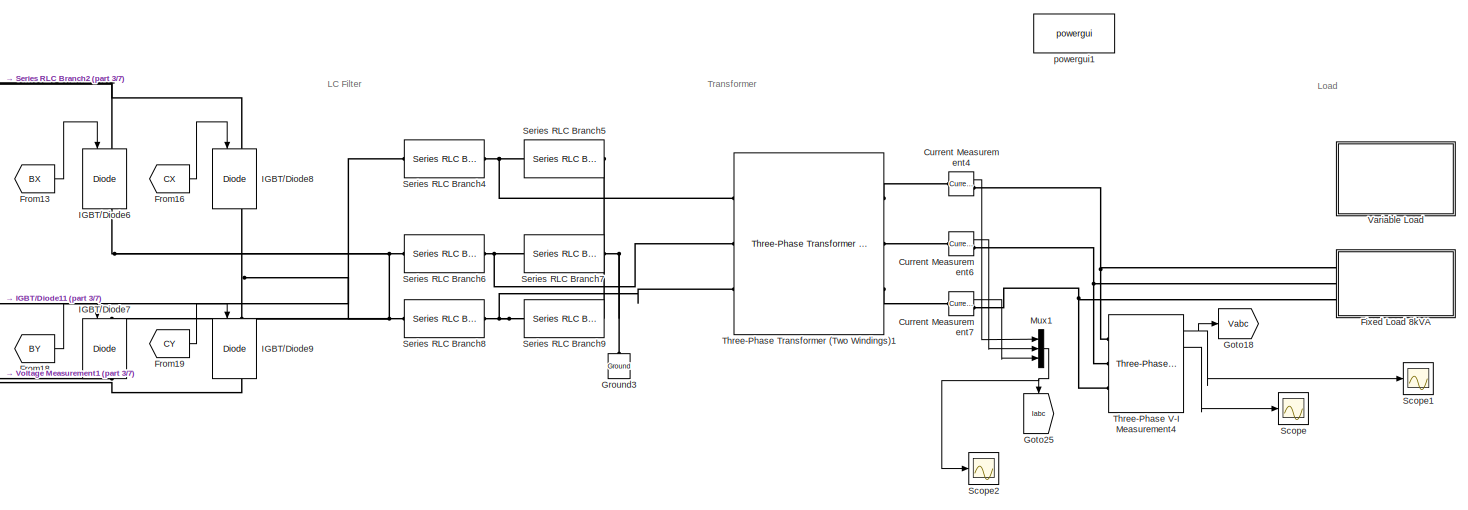
[diagram: root canvas - part 1/7, top right region]
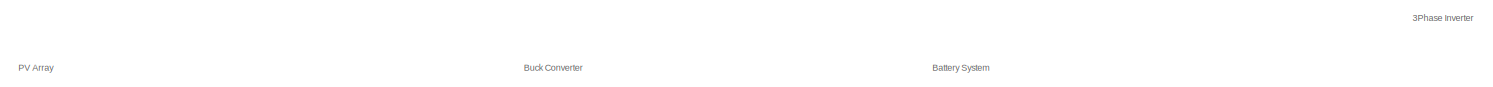
[diagram: root canvas - part 2/7, top left region]
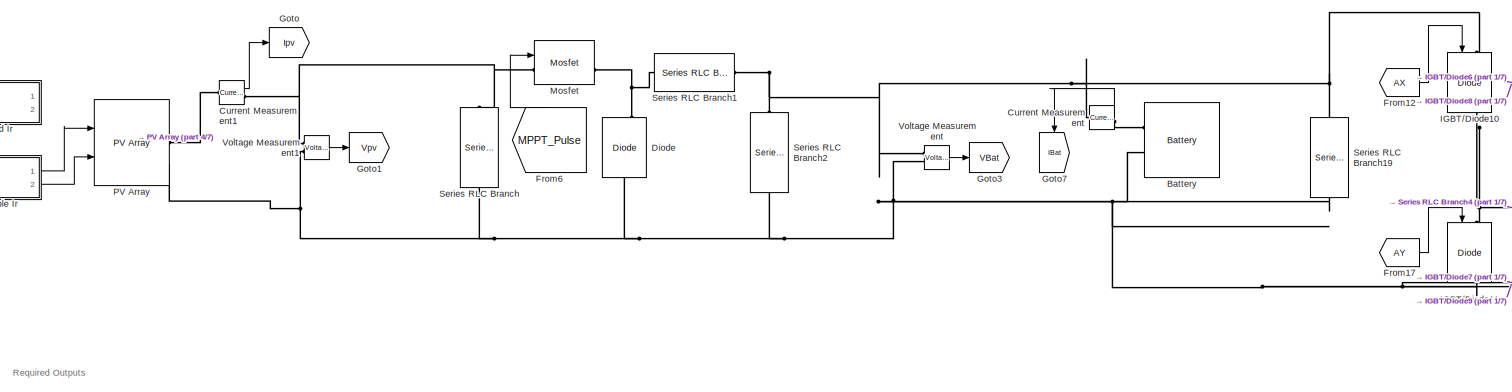
[diagram: root canvas - part 3/7, top left region]
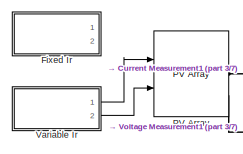
[diagram: root canvas - part 4/7, top left region]
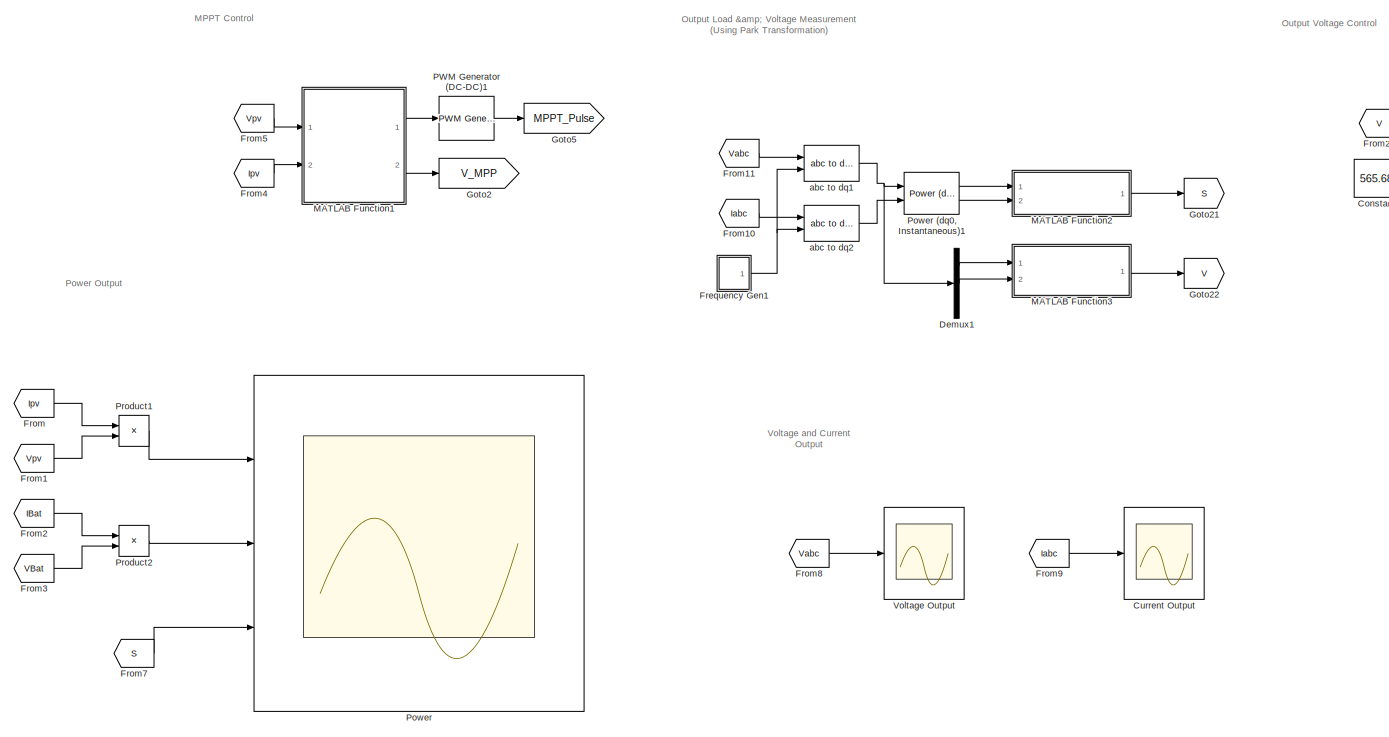
[diagram: root canvas - part 5/7, central region]
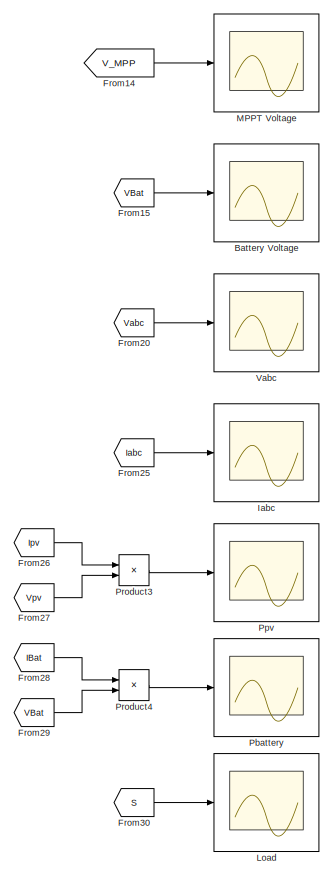
[diagram: root canvas - part 6/7, bottom left region]
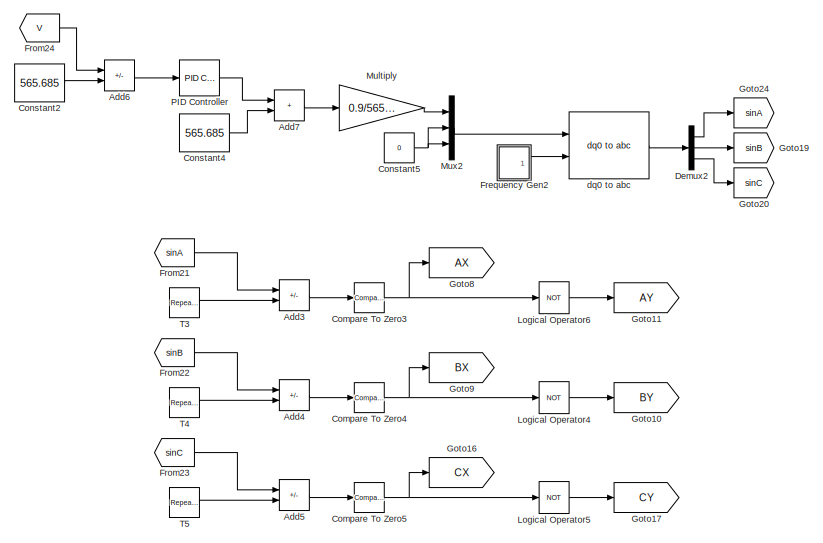
[diagram: root canvas - part 7/7, middle right region]
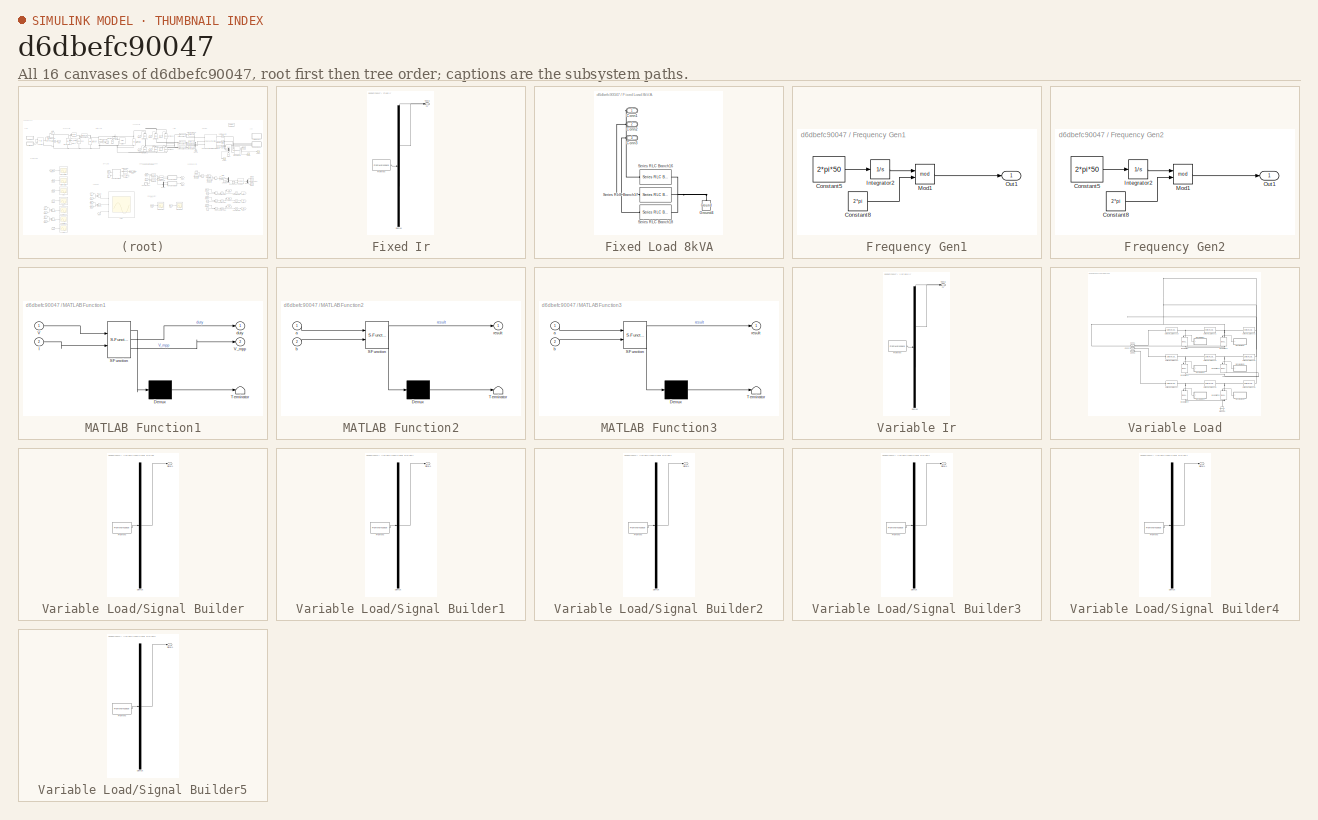
[diagram: thumbnail index - all 16 canvases of the model, root first then tree order]
MODEL slx_d6dbefc90047
KIND model
CONFIG AbsTol = auto
CONFIG EnableMultiTasking = off
CONFIG FixedStep = auto
CONFIG MaxStep = auto
CONFIG MinStep = auto
CONFIG RelTol = 1e-3
CONFIG SampleTimeConstraint = Unconstrained
CONFIG Solver = ode23t
CONFIG SolverName = ode23t
CONFIG StartTime = 0.0
CONFIG StopTime = 10
BLOCK [Sum] Add3
  IconShape = rectangular
  Inputs = +-
  Ports = [2, 1]
BLOCK [Sum] Add4
  IconShape = rectangular
  Inputs = +-
  Ports = [2, 1]
BLOCK [Sum] Add5
  IconShape = rectangular
  Inputs = +-
  Ports = [2, 1]
BLOCK [Sum] Add6
  IconShape = rectangular
  Inputs = +-
  Ports = [2, 1]
BLOCK [Sum] Add7
  IconShape = rectangular
  Ports = [2, 1]
BLOCK [Reference] Battery  REF=electricdrivelib/Extra Sources/Battery
  NameLocation = top
  Ports = [0, 1, 0, 0, 0, 2]
  SourceBlock = electricdrivelib/Extra Sources/Battery
  SourceType = Battery
BLOCK [Scope] Battery Voltage
  Floating = off
  NumInputPorts = 1
  Ports = [1]
  ScopeSpecificationString = Simulink.scopes.TimeScopeBlockCfg('CurrentConfiguration', extmgr.ConfigurationSet(extmgr.Configuration('Core','General UI',true,'FigureColor',[1 1 1]),extmgr.Configuration('Core','Source UI',true),extmgr.Configuration('Sources','WiredSimulink',true,'DataLoggingVariableName','ScopeData2'),extmgr.Configuration('Visuals','Time Domain',true,'SerializedDisplays',{struct('MinYLimReal','-6.21993','MaxYLi...<+1571ch>
BLOCK [Reference] Compare To Zero3  REF=simulink/Logic and Bit
Operations/Compare
To Zero
  Ports = [1, 1]
  SourceBlock = simulink/Logic and Bit\nOperations/Compare\nTo Zero
  SourceType = Compare To Zero
BLOCK [Reference] Compare To Zero4  REF=simulink/Logic and Bit
Operations/Compare
To Zero
  Ports = [1, 1]
  SourceBlock = simulink/Logic and Bit\nOperations/Compare\nTo Zero
  SourceType = Compare To Zero
BLOCK [Reference] Compare To Zero5  REF=simulink/Logic and Bit
Operations/Compare
To Zero
  Ports = [1, 1]
  SourceBlock = simulink/Logic and Bit\nOperations/Compare\nTo Zero
  SourceType = Compare To Zero
BLOCK [Constant] Constant2
  Value = 565.685
BLOCK [Constant] Constant4
  Value = 565.685
BLOCK [Constant] Constant5
  Value = 0
BLOCK [Reference] Current Measurement  REF=powerlib/Measurements/Current Measurement
  Ports = [0, 1, 0, 0, 0, 1, 1]
  SourceBlock = powerlib/Measurements/Current Measurement
  SourceType = Current Measurement
  UserDataPersistent = on
BLOCK [Reference] Current Measurement1  REF=powerlib/Measurements/Current Measurement
  Ports = [0, 1, 0, 0, 0, 1, 1]
  SourceBlock = powerlib/Measurements/Current Measurement
  SourceType = Current Measurement
  UserDataPersistent = on
BLOCK [Reference] Current Measurement4  REF=powerlib/Measurements/Current Measurement
  Ports = [0, 1, 0, 0, 0, 1, 1]
  SourceBlock = powerlib/Measurements/Current Measurement
  SourceType = Current Measurement
  UserDataPersistent = on
BLOCK [Reference] Current Measurement6  REF=powerlib/Measurements/Current Measurement
  Ports = [0, 1, 0, 0, 0, 1, 1]
  SourceBlock = powerlib/Measurements/Current Measurement
  SourceType = Current Measurement
  UserDataPersistent = on
BLOCK [Reference] Current Measurement7  REF=powerlib/Measurements/Current Measurement
  Ports = [0, 1, 0, 0, 0, 1, 1]
  SourceBlock = powerlib/Measurements/Current Measurement
  SourceType = Current Measurement
  UserDataPersistent = on
BLOCK [Scope] Current Output
  Floating = off
  NumInputPorts = 1
  Ports = [1]
  ScopeSpecificationString = Simulink.scopes.TimeScopeBlockCfg('CurrentConfiguration', extmgr.ConfigurationSet(extmgr.Configuration('Core','General UI',true),extmgr.Configuration('Core','Source UI',true),extmgr.Configuration('Sources','WiredSimulink',true,'DataLoggingVariableName','ScopeData2'),extmgr.Configuration('Visuals','Time Domain',true,'SerializedDisplays',{struct('MinYLimReal','-17.83427','MaxYLimReal','16.7279','YLa...<+1538ch>
BLOCK [Demux] Demux1
  Outputs = 3
  Ports = [1, 3]
BLOCK [Demux] Demux2
  Outputs = 3
  Ports = [1, 3]
BLOCK [Reference] Diode  REF=powerlib/Power Electronics/Diode
  NameLocation = right
  Ports = [0, 1, 0, 0, 0, 1, 1]
  SourceBlock = powerlib/Power Electronics/Diode
  SourceType = Diode
BLOCK [SubSystem] Fixed Ir
  ClipboardFcn = sigbuilder_block('clipboard');
  CloseFcn = sigbuilder_block('close');
  ContinueFcn = sigbuilder_block('continue');
  CopyFcn = sigbuilder_block('copy');
  DeleteFcn = sigbuilder_block('delete');
  LoadFcn = sigbuilder_block('load');
  MaskHideContents = on
  ModelCloseFcn = sigbuilder_block('modelClose');
  NameChangeFcn = sigbuilder_block('namechange');
  OpenFcn = sigbuilder_block('open',[437.6 182.4 550.4 400.2 ]);
  PauseFcn = sigbuilder_block('pause');
  Ports = [0, 2]
  PreSaveFcn = sigbuilder_block('preSave');
  StartFcn = sigbuilder_block('start');
  StopFcn = sigbuilder_block('stop');
  Tag = STV Subsys
BLOCK [Demux] Fixed Ir/Demux
  DisplayOption = none
  Outputs = 2
  Ports = [1, 2]
  Tag = STV Demux
BLOCK [FromWorkspace] Fixed Ir/FromWs
  Tag = STV FromWs
  VariableName = tuvar
BLOCK [Outport] Fixed Ir/Ir
  Tag = STV Outport
BLOCK [Outport] Fixed Ir/Temp
  Port = 2
  Tag = STV Outport
BLOCK [SubSystem] Fixed Load 8kVA
  Ports = [0, 0, 0, 0, 0, 3]
BLOCK [PMIOPort] Fixed Load 8kVA/Conn1
  Side = Left
BLOCK [PMIOPort] Fixed Load 8kVA/Conn2
  Port = 2
  Side = Left
BLOCK [PMIOPort] Fixed Load 8kVA/Conn3
  Port = 3
  Side = Left
BLOCK [Reference] Fixed Load 8kVA/Ground4  REF=powerlib/Elements/Ground
  NameLocation = right
  Ports = [0, 0, 0, 0, 0, 1]
  SourceBlock = powerlib/Elements/Ground
  SourceType = Ground
BLOCK [Reference] Fixed Load 8kVA/Series RLC Branch16  REF=powerlib/Elements/Series RLC Branch
  Ports = [0, 0, 0, 0, 0, 1, 1]
  SourceBlock = powerlib/Elements/Series RLC Branch
  SourceType = Series RLC Branch
BLOCK [Reference] Fixed Load 8kVA/Series RLC Branch17  REF=powerlib/Elements/Series RLC Branch
  Ports = [0, 0, 0, 0, 0, 1, 1]
  SourceBlock = powerlib/Elements/Series RLC Branch
  SourceType = Series RLC Branch
BLOCK [Reference] Fixed Load 8kVA/Series RLC Branch18  REF=powerlib/Elements/Series RLC Branch
  Ports = [0, 0, 0, 0, 0, 1, 1]
  SourceBlock = powerlib/Elements/Series RLC Branch
  SourceType = Series RLC Branch
BLOCK [SubSystem] Frequency Gen1
  Ports = [0, 1]
BLOCK [Constant] Frequency Gen1/Constant5
  Value = 2*pi*50
BLOCK [Constant] Frequency Gen1/Constant8
  Value = 2*pi
BLOCK [Integrator] Frequency Gen1/Integrator2
  Ports = [1, 1]
BLOCK [Math] Frequency Gen1/Mod1
  Operator = mod
  Ports = [2, 1]
BLOCK [Outport] Frequency Gen1/Out1
BLOCK [SubSystem] Frequency Gen2
  Ports = [0, 1]
BLOCK [Constant] Frequency Gen2/Constant5
  Value = 2*pi*50
BLOCK [Constant] Frequency Gen2/Constant8
  Value = 2*pi
BLOCK [Integrator] Frequency Gen2/Integrator2
  Ports = [1, 1]
BLOCK [Math] Frequency Gen2/Mod1
  Operator = mod
  Ports = [2, 1]
BLOCK [Outport] Frequency Gen2/Out1
BLOCK [From] From
  GotoTag = Ipv
BLOCK [From] From1
  GotoTag = Vpv
BLOCK [From] From10
  GotoTag = Iabc
BLOCK [From] From11
  GotoTag = Vabc
BLOCK [From] From12
  GotoTag = AX
BLOCK [From] From13
  GotoTag = BX
BLOCK [From] From14
  GotoTag = V_MPP
BLOCK [From] From15
  GotoTag = VBat
BLOCK [From] From16
  GotoTag = CX
BLOCK [From] From17
  GotoTag = AY
BLOCK [From] From18
  GotoTag = BY
BLOCK [From] From19
  GotoTag = CY
BLOCK [From] From2
  GotoTag = IBat
BLOCK [From] From20
  GotoTag = Vabc
BLOCK [From] From21
  GotoTag = sinA
BLOCK [From] From22
  GotoTag = sinB
BLOCK [From] From23
  GotoTag = sinC
BLOCK [From] From24
  GotoTag = V
BLOCK [From] From25
  GotoTag = Iabc
BLOCK [From] From26
  GotoTag = Ipv
BLOCK [From] From27
  GotoTag = Vpv
BLOCK [From] From28
  GotoTag = IBat
BLOCK [From] From29
  GotoTag = VBat
BLOCK [From] From3
  GotoTag = VBat
BLOCK [From] From30
  GotoTag = S
BLOCK [From] From4
  GotoTag = Ipv
BLOCK [From] From5
  GotoTag = Vpv
BLOCK [From] From6
  GotoTag = MPPT_Pulse
  NameLocation = left
BLOCK [From] From7
  GotoTag = S
BLOCK [From] From8
  GotoTag = Vabc
BLOCK [From] From9
  GotoTag = Iabc
BLOCK [Goto] Goto
  GotoTag = Ipv
BLOCK [Goto] Goto1
  GotoTag = Vpv
BLOCK [Goto] Goto10
  GotoTag = BY
BLOCK [Goto] Goto11
  GotoTag = AY
BLOCK [Goto] Goto16
  GotoTag = CX
BLOCK [Goto] Goto17
  GotoTag = CY
BLOCK [Goto] Goto18
  GotoTag = Vabc
BLOCK [Goto] Goto19
  GotoTag = sinB
BLOCK [Goto] Goto2
  GotoTag = V_MPP
BLOCK [Goto] Goto20
  GotoTag = sinC
BLOCK [Goto] Goto21
  GotoTag = S
BLOCK [Goto] Goto22
  GotoTag = V
BLOCK [Goto] Goto24
  GotoTag = sinA
BLOCK [Goto] Goto25
  GotoTag = Iabc
  NameLocation = left
BLOCK [Goto] Goto3
  GotoTag = VBat
BLOCK [Goto] Goto5
  GotoTag = MPPT_Pulse
BLOCK [Goto] Goto7
  GotoTag = IBat
  NameLocation = left
BLOCK [Goto] Goto8
  GotoTag = AX
BLOCK [Goto] Goto9
  GotoTag = BX
BLOCK [Reference] Ground3  REF=powerlib/Elements/Ground
  NameLocation = right
  Ports = [0, 0, 0, 0, 0, 1]
  SourceBlock = powerlib/Elements/Ground
  SourceType = Ground
BLOCK [Reference] IGBT//Diode10  REF=powerlib/Power Electronics/IGBT//Diode
  NameLocation = left
  Ports = [1, 1, 0, 0, 0, 1, 1]
  SourceBlock = powerlib/Power Electronics/IGBT//Diode
  SourceType = IGBT/Diode
BLOCK [Reference] IGBT//Diode11  REF=powerlib/Power Electronics/IGBT//Diode
  NameLocation = left
  Ports = [1, 1, 0, 0, 0, 1, 1]
  SourceBlock = powerlib/Power Electronics/IGBT//Diode
  SourceType = IGBT/Diode
BLOCK [Reference] IGBT//Diode6  REF=powerlib/Power Electronics/IGBT//Diode
  NameLocation = left
  Ports = [1, 1, 0, 0, 0, 1, 1]
  SourceBlock = powerlib/Power Electronics/IGBT//Diode
  SourceType = IGBT/Diode
BLOCK [Reference] IGBT//Diode7  REF=powerlib/Power Electronics/IGBT//Diode
  NameLocation = left
  Ports = [1, 1, 0, 0, 0, 1, 1]
  SourceBlock = powerlib/Power Electronics/IGBT//Diode
  SourceType = IGBT/Diode
BLOCK [Reference] IGBT//Diode8  REF=powerlib/Power Electronics/IGBT//Diode
  NameLocation = left
  Ports = [1, 1, 0, 0, 0, 1, 1]
  SourceBlock = powerlib/Power Electronics/IGBT//Diode
  SourceType = IGBT/Diode
BLOCK [Reference] IGBT//Diode9  REF=powerlib/Power Electronics/IGBT//Diode
  NameLocation = left
  Ports = [1, 1, 0, 0, 0, 1, 1]
  SourceBlock = powerlib/Power Electronics/IGBT//Diode
  SourceType = IGBT/Diode
BLOCK [Scope] Iabc
  Floating = off
  NumInputPorts = 1
  Ports = [1]
  ScopeSpecificationString = Simulink.scopes.TimeScopeBlockCfg('CurrentConfiguration', extmgr.ConfigurationSet(extmgr.Configuration('Core','General UI',true,'FigureColor',[1 1 1]),extmgr.Configuration('Core','Source UI',true),extmgr.Configuration('Sources','WiredSimulink',true,'DataLoggingVariableName','ScopeData4'),extmgr.Configuration('Visuals','Time Domain',true,'SerializedDisplays',{struct('MinYLimReal','-20.31677','MaxYL...<+1794ch>
BLOCK [Scope] Load
  Floating = off
  NumInputPorts = 1
  Ports = [1]
  ScopeSpecificationString = Simulink.scopes.TimeScopeBlockCfg('CurrentConfiguration', extmgr.ConfigurationSet(extmgr.Configuration('Core','General UI',true,'FigureColor',[1 1 1]),extmgr.Configuration('Core','Source UI',true),extmgr.Configuration('Sources','WiredSimulink',true,'DataLoggingVariableName','ScopeData7'),extmgr.Configuration('Visuals','Time Domain',true,'SerializedDisplays',{struct('MinYLimReal','-1057.73442','Max...<+1582ch>
BLOCK [Logic] Logical Operator4
  AllPortsSameDT = off
  Operator = NOT
  OutDataTypeStr = boolean
  Ports = [1, 1]
BLOCK [Logic] Logical Operator5
  AllPortsSameDT = off
  Operator = NOT
  OutDataTypeStr = boolean
  Ports = [1, 1]
BLOCK [Logic] Logical Operator6
  AllPortsSameDT = off
  Operator = NOT
  OutDataTypeStr = boolean
  Ports = [1, 1]
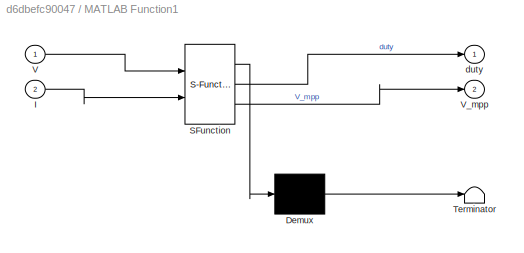
BLOCK [SubSystem] MATLAB Function1
  ErrorFcn = Stateflow.Translate.translate
  PermitHierarchicalResolution = ExplicitOnly
  Ports = [2, 2]
  SFBlockType = MATLAB Function
  TreatAsAtomicUnit = on
BLOCK [Demux] MATLAB Function1/ Demux 
  Outputs = 1
  Ports = [1, 1]
BLOCK [S-Function] MATLAB Function1/ SFunction 
  EnableBusSupport = on
  FunctionName = sf_sfun
  PortCounts = [2 3]
  Ports = [2, 3]
  SFcnIsStateOwnerBlock = off
  SFunctionDeploymentMode = off
  Tag = Stateflow S-Function 1
BLOCK [Terminator] MATLAB Function1/ Terminator 
BLOCK [Inport] MATLAB Function1/I
  Port = 2
BLOCK [Inport] MATLAB Function1/V
BLOCK [Outport] MATLAB Function1/V_mpp
  Port = 2
BLOCK [Outport] MATLAB Function1/duty
BLOCK [SubSystem] MATLAB Function2
  ErrorFcn = Stateflow.Translate.translate
  PermitHierarchicalResolution = ExplicitOnly
  Ports = [2, 1]
  SFBlockType = MATLAB Function
  TreatAsAtomicUnit = on
BLOCK [Demux] MATLAB Function2/ Demux 
  Outputs = 1
  Ports = [1, 1]
BLOCK [S-Function] MATLAB Function2/ SFunction 
  EnableBusSupport = on
  FunctionName = sf_sfun
  PortCounts = [2 2]
  Ports = [2, 2]
  SFcnIsStateOwnerBlock = off
  SFunctionDeploymentMode = off
  Tag = Stateflow S-Function 3
BLOCK [Terminator] MATLAB Function2/ Terminator 
BLOCK [Inport] MATLAB Function2/a
BLOCK [Inport] MATLAB Function2/b
  Port = 2
BLOCK [Outport] MATLAB Function2/result
BLOCK [SubSystem] MATLAB Function3
  ErrorFcn = Stateflow.Translate.translate
  PermitHierarchicalResolution = ExplicitOnly
  Ports = [2, 1]
  SFBlockType = MATLAB Function
  TreatAsAtomicUnit = on
BLOCK [Demux] MATLAB Function3/ Demux 
  Outputs = 1
  Ports = [1, 1]
BLOCK [S-Function] MATLAB Function3/ SFunction 
  EnableBusSupport = on
  FunctionName = sf_sfun
  PortCounts = [2 2]
  Ports = [2, 2]
  SFcnIsStateOwnerBlock = off
  SFunctionDeploymentMode = off
  Tag = Stateflow S-Function 4
BLOCK [Terminator] MATLAB Function3/ Terminator 
BLOCK [Inport] MATLAB Function3/a
BLOCK [Inport] MATLAB Function3/b
  Port = 2
BLOCK [Outport] MATLAB Function3/result
BLOCK [Scope] MPPT Voltage
  Floating = off
  NumInputPorts = 1
  Ports = [1]
  ScopeSpecificationString = Simulink.scopes.TimeScopeBlockCfg('CurrentConfiguration', extmgr.ConfigurationSet(extmgr.Configuration('Core','General UI',true,'FigureColor',[1 1 1]),extmgr.Configuration('Core','Source UI',true),extmgr.Configuration('Sources','WiredSimulink',true,'DataLoggingVariableName','ScopeData1'),extmgr.Configuration('Visuals','Time Domain',true,'SerializedDisplays',{struct('MinYLimReal','-30.37666','MaxYL...<+1596ch>
BLOCK [Reference] Mosfet  REF=powerlib/Power Electronics/Mosfet
  Ports = [1, 1, 0, 0, 0, 1, 1]
  SourceBlock = powerlib/Power Electronics/Mosfet
  SourceType = Mosfet
BLOCK [Gain] Multiply
  Gain = 0.9/565.685
BLOCK [Mux] Mux1
  DisplayOption = bar
  Inputs = 3
  Ports = [3, 1]
BLOCK [Mux] Mux2
  DisplayOption = bar
  Inputs = 3
  Ports = [3, 1]
BLOCK [Reference] PID Controller  REF=simulink/Continuous/PID Controller
  Ports = [1, 1]
  SourceBlock = simulink/Continuous/PID Controller
  SourceType = PID 1dof
BLOCK [Reference] PV Array  REF=re_lib/Solar/PV Array
  Ports = [2, 1, 0, 0, 0, 0, 2]
  SourceBlock = re_lib/Solar/PV Array
  SourceType = PV array
BLOCK [Reference] PWM Generator (DC-DC)1  REF=powerlib_meascontrol/Pulse & Signal Generators/PWM Generator (DC-DC)
  Ports = [1, 1]
  SourceBlock = powerlib_meascontrol/Pulse & Signal Generators/PWM Generator (DC-DC)
  SourceType = PWM Generator (DC-DC)
BLOCK [Scope] Pbattery
  Floating = off
  NumInputPorts = 1
  Ports = [1]
  ScopeSpecificationString = Simulink.scopes.TimeScopeBlockCfg('CurrentConfiguration', extmgr.ConfigurationSet(extmgr.Configuration('Core','General UI',true,'FigureColor',[1 1 1]),extmgr.Configuration('Core','Source UI',true),extmgr.Configuration('Sources','WiredSimulink',true,'DataLoggingVariableName','ScopeData6'),extmgr.Configuration('Visuals','Time Domain',true,'SerializedDisplays',{struct('MinYLimReal','-49029.8387','Max...<+1565ch>
BLOCK [Scope] Power
  Floating = off
  NumInputPorts = 3
  Ports = [3]
  ScopeSpecificationString = Simulink.scopes.TimeScopeBlockCfg('CurrentConfiguration', extmgr.ConfigurationSet(extmgr.Configuration('Core','General UI',true,'FigureColor',[1 1 1]),extmgr.Configuration('Core','Source UI',true),extmgr.Configuration('Sources','WiredSimulink',true,'DataLoggingVariableName','ScopeData4'),extmgr.Configuration('Visuals','Time Domain',true,'SerializedDisplays',{struct('MinYLimReal','-1552.66761','Max...<+3247ch>
BLOCK [Reference] Power (dq0, Instantaneous)1  REF=powerlib_meascontrol/Measurements/Power (dq0, Instantaneous)
  Ports = [2, 2]
  SourceBlock = powerlib_meascontrol/Measurements/Power (dq0, Instantaneous)
  SourceType = Power (dq0, Instantaneous)
BLOCK [Scope] Ppv
  Floating = off
  NumInputPorts = 1
  Ports = [1]
  ScopeSpecificationString = Simulink.scopes.TimeScopeBlockCfg('CurrentConfiguration', extmgr.ConfigurationSet(extmgr.Configuration('Core','General UI',true,'FigureColor',[1 1 1]),extmgr.Configuration('Core','Source UI',true),extmgr.Configuration('Sources','WiredSimulink',true,'DataLoggingVariableName','ScopeData5'),extmgr.Configuration('Visuals','Time Domain',true,'SerializedDisplays',{struct('MinYLimReal','-1603.64554','Max...<+1542ch>
BLOCK [Product] Product1
  Ports = [2, 1]
BLOCK [Product] Product2
  Ports = [2, 1]
BLOCK [Product] Product3
  Ports = [2, 1]
BLOCK [Product] Product4
  Ports = [2, 1]
BLOCK [Scope] Scope
  Floating = off
  NumInputPorts = 1
  Ports = [1]
  ScopeSpecificationString = Simulink.scopes.TimeScopeBlockCfg('CurrentConfiguration', extmgr.ConfigurationSet(extmgr.Configuration('Core','General UI',true),extmgr.Configuration('Core','Source UI',true),extmgr.Configuration('Sources','WiredSimulink',true,'DataLoggingVariableName','Iabc','DataLogging',true,'DataLoggingSaveFormat','StructureWithTime'),extmgr.Configuration('Visuals','Time Domain',true,'SerializedDisplays',{stru...<+1564ch>
BLOCK [Scope] Scope1
  Floating = off
  NumInputPorts = 1
  Ports = [1]
  ScopeSpecificationString = Simulink.scopes.TimeScopeBlockCfg('CurrentConfiguration', extmgr.ConfigurationSet(extmgr.Configuration('Core','General UI',true),extmgr.Configuration('Core','Source UI',true),extmgr.Configuration('Sources','WiredSimulink',true,'DataLoggingVariableName','Vabc','DataLogging',true,'DataLoggingSaveFormat','StructureWithTime'),extmgr.Configuration('Visuals','Time Domain',true,'SerializedDisplays',{stru...<+1582ch>
BLOCK [Scope] Scope2
  Floating = off
  NumInputPorts = 1
  Ports = [1]
  ScopeSpecificationString = Simulink.scopes.TimeScopeBlockCfg('CurrentConfiguration', extmgr.ConfigurationSet(extmgr.Configuration('Core','General UI',true),extmgr.Configuration('Core','Source UI',true),extmgr.Configuration('Sources','WiredSimulink',true,'DataLoggingVariableName','I','DataLogging',true,'DataLoggingSaveFormat','StructureWithTime'),extmgr.Configuration('Visuals','Time Domain',true,'SerializedDisplays',{struct(...<+1516ch>
BLOCK [Reference] Series RLC Branch  REF=powerlib/Elements/Series RLC Branch
  NameLocation = left
  Ports = [0, 0, 0, 0, 0, 1, 1]
  SourceBlock = powerlib/Elements/Series RLC Branch
  SourceType = Series RLC Branch
BLOCK [Reference] Series RLC Branch1  REF=powerlib/Elements/Series RLC Branch
  Ports = [0, 0, 0, 0, 0, 1, 1]
  SourceBlock = powerlib/Elements/Series RLC Branch
  SourceType = Series RLC Branch
BLOCK [Reference] Series RLC Branch19  REF=powerlib/Elements/Series RLC Branch
  NameLocation = left
  Ports = [0, 0, 0, 0, 0, 1, 1]
  SourceBlock = powerlib/Elements/Series RLC Branch
  SourceType = Series RLC Branch
BLOCK [Reference] Series RLC Branch2  REF=powerlib/Elements/Series RLC Branch
  NameLocation = left
  Ports = [0, 0, 0, 0, 0, 1, 1]
  SourceBlock = powerlib/Elements/Series RLC Branch
  SourceType = Series RLC Branch
BLOCK [Reference] Series RLC Branch4  REF=powerlib/Elements/Series RLC Branch
  Ports = [0, 0, 0, 0, 0, 1, 1]
  SourceBlock = powerlib/Elements/Series RLC Branch
  SourceType = Series RLC Branch
BLOCK [Reference] Series RLC Branch5  REF=powerlib/Elements/Series RLC Branch
  Ports = [0, 0, 0, 0, 0, 1, 1]
  SourceBlock = powerlib/Elements/Series RLC Branch
  SourceType = Series RLC Branch
BLOCK [Reference] Series RLC Branch6  REF=powerlib/Elements/Series RLC Branch
  Ports = [0, 0, 0, 0, 0, 1, 1]
  SourceBlock = powerlib/Elements/Series RLC Branch
  SourceType = Series RLC Branch
BLOCK [Reference] Series RLC Branch7  REF=powerlib/Elements/Series RLC Branch
  Ports = [0, 0, 0, 0, 0, 1, 1]
  SourceBlock = powerlib/Elements/Series RLC Branch
  SourceType = Series RLC Branch
BLOCK [Reference] Series RLC Branch8  REF=powerlib/Elements/Series RLC Branch
  Ports = [0, 0, 0, 0, 0, 1, 1]
  SourceBlock = powerlib/Elements/Series RLC Branch
  SourceType = Series RLC Branch
BLOCK [Reference] Series RLC Branch9  REF=powerlib/Elements/Series RLC Branch
  Ports = [0, 0, 0, 0, 0, 1, 1]
  SourceBlock = powerlib/Elements/Series RLC Branch
  SourceType = Series RLC Branch
BLOCK [Reference] T3  REF=simulink/Sources/Repeating
Sequence
  Ports = [0, 1]
  SourceBlock = simulink/Sources/Repeating\nSequence
  SourceType = Repeating table
BLOCK [Reference] T4  REF=simulink/Sources/Repeating
Sequence
  Ports = [0, 1]
  SourceBlock = simulink/Sources/Repeating\nSequence
  SourceType = Repeating table
BLOCK [Reference] T5  REF=simulink/Sources/Repeating
Sequence
  Ports = [0, 1]
  SourceBlock = simulink/Sources/Repeating\nSequence
  SourceType = Repeating table
BLOCK [Reference] Three-Phase Transformer (Two Windings)1  REF=powerlib/Elements/Three-Phase Transformer (Two Windings)
  Ports = [0, 0, 0, 0, 0, 3, 3]
  SourceBlock = powerlib/Elements/Three-Phase Transformer (Two Windings)
  SourceType = Three-Phase Transformer (Two Windings)
BLOCK [Reference] Three-Phase V-I Measurement4  REF=powerlib/Measurements/Three-Phase V-I Measurement
  Ports = [0, 2, 0, 0, 0, 3, 3]
  SourceBlock = powerlib/Measurements/Three-Phase V-I Measurement
  SourceType = Three-Phase VI Measurement
BLOCK [Scope] Vabc
  Floating = off
  NumInputPorts = 1
  Ports = [1]
  ScopeSpecificationString = Simulink.scopes.TimeScopeBlockCfg('CurrentConfiguration', extmgr.ConfigurationSet(extmgr.Configuration('Core','General UI',true,'FigureColor',[1 1 1]),extmgr.Configuration('Core','Source UI',true),extmgr.Configuration('Sources','WiredSimulink',true,'DataLoggingVariableName','ScopeData3'),extmgr.Configuration('Visuals','Time Domain',true,'SerializedDisplays',{struct('MinYLimReal','-1101.01153','Max...<+1794ch>
BLOCK [SubSystem] Variable Ir
  ClipboardFcn = sigbuilder_block('clipboard');
  CloseFcn = sigbuilder_block('close');
  ContinueFcn = sigbuilder_block('continue');
  CopyFcn = sigbuilder_block('copy');
  DeleteFcn = sigbuilder_block('delete');
  LoadFcn = sigbuilder_block('load');
  MaskHideContents = on
  ModelCloseFcn = sigbuilder_block('modelClose');
  NameChangeFcn = sigbuilder_block('namechange');
  OpenFcn = sigbuilder_block('open',[437.6 182.4 550.4 400.2 ]);
  PauseFcn = sigbuilder_block('pause');
  Ports = [0, 2]
  PreSaveFcn = sigbuilder_block('preSave');
  StartFcn = sigbuilder_block('start');
  StopFcn = sigbuilder_block('stop');
  Tag = STV Subsys
BLOCK [Demux] Variable Ir/Demux
  DisplayOption = none
  Outputs = 2
  Ports = [1, 2]
  Tag = STV Demux
BLOCK [FromWorkspace] Variable Ir/FromWs
  Tag = STV FromWs
  VariableName = tuvar
BLOCK [Outport] Variable Ir/Ir
  Tag = STV Outport
BLOCK [Outport] Variable Ir/Temp
  Port = 2
  Tag = STV Outport
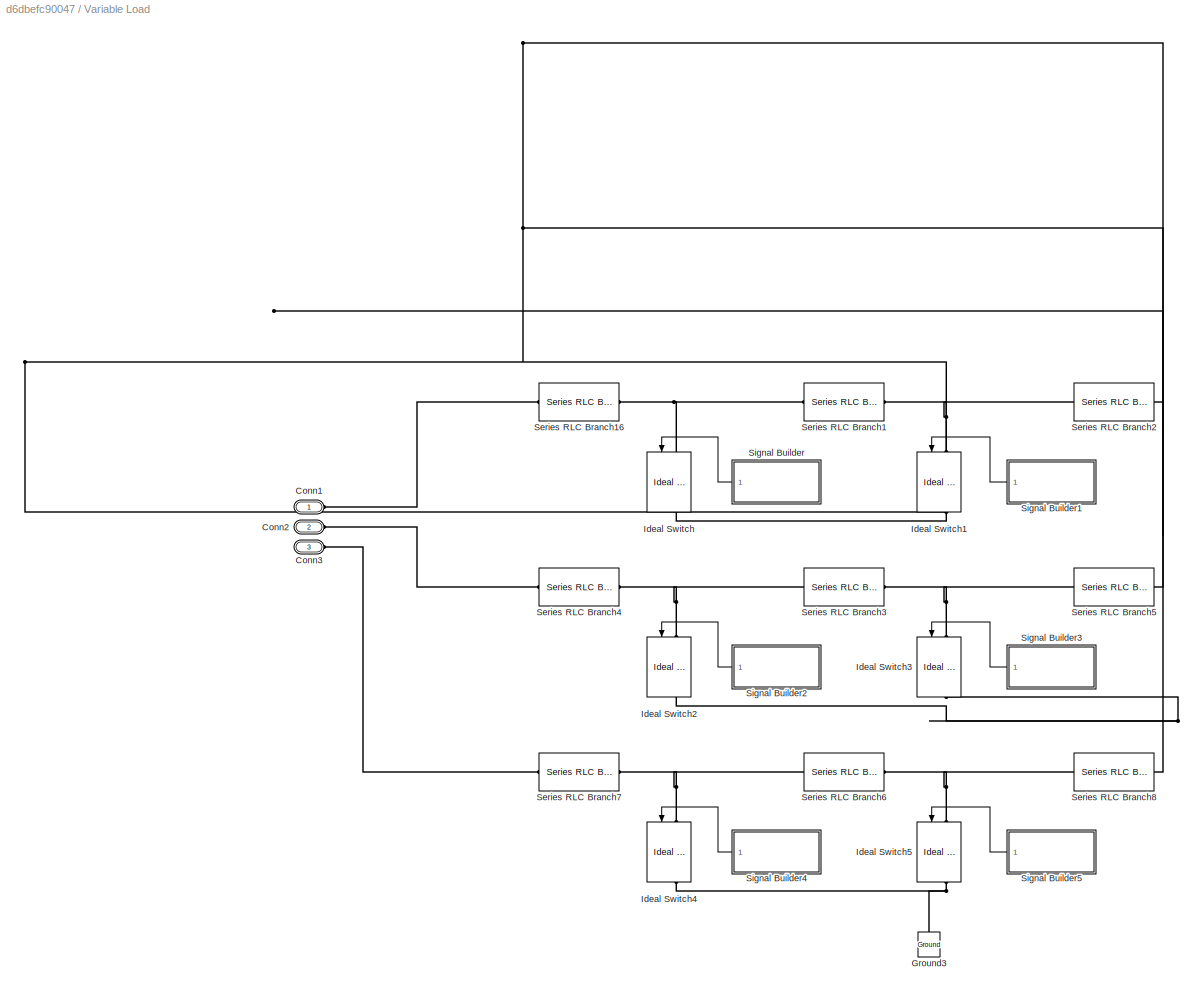
BLOCK [SubSystem] Variable Load
  Ports = [0, 0, 0, 0, 0, 3]
BLOCK [PMIOPort] Variable Load/Conn1
  Side = Left
BLOCK [PMIOPort] Variable Load/Conn2
  Port = 2
  Side = Left
BLOCK [PMIOPort] Variable Load/Conn3
  Port = 3
  Side = Left
BLOCK [Reference] Variable Load/Ground3  REF=powerlib/Elements/Ground
  NameLocation = right
  Ports = [0, 0, 0, 0, 0, 1]
  SourceBlock = powerlib/Elements/Ground
  SourceType = Ground
BLOCK [Reference] Variable Load/Ideal Switch  REF=powerlib/Power Electronics/Ideal Switch
  NameLocation = left
  Ports = [1, 1, 0, 0, 0, 1, 1]
  SourceBlock = powerlib/Power Electronics/Ideal Switch
  SourceType = Ideal Switch
BLOCK [Reference] Variable Load/Ideal Switch1  REF=powerlib/Power Electronics/Ideal Switch
  NameLocation = left
  Ports = [1, 1, 0, 0, 0, 1, 1]
  SourceBlock = powerlib/Power Electronics/Ideal Switch
  SourceType = Ideal Switch
BLOCK [Reference] Variable Load/Ideal Switch2  REF=powerlib/Power Electronics/Ideal Switch
  NameLocation = left
  Ports = [1, 1, 0, 0, 0, 1, 1]
  SourceBlock = powerlib/Power Electronics/Ideal Switch
  SourceType = Ideal Switch
BLOCK [Reference] Variable Load/Ideal Switch3  REF=powerlib/Power Electronics/Ideal Switch
  NameLocation = left
  Ports = [1, 1, 0, 0, 0, 1, 1]
  SourceBlock = powerlib/Power Electronics/Ideal Switch
  SourceType = Ideal Switch
BLOCK [Reference] Variable Load/Ideal Switch4  REF=powerlib/Power Electronics/Ideal Switch
  NameLocation = left
  Ports = [1, 1, 0, 0, 0, 1, 1]
  SourceBlock = powerlib/Power Electronics/Ideal Switch
  SourceType = Ideal Switch
BLOCK [Reference] Variable Load/Ideal Switch5  REF=powerlib/Power Electronics/Ideal Switch
  NameLocation = left
  Ports = [1, 1, 0, 0, 0, 1, 1]
  SourceBlock = powerlib/Power Electronics/Ideal Switch
  SourceType = Ideal Switch
BLOCK [Reference] Variable Load/Series RLC Branch1  REF=powerlib/Elements/Series RLC Branch
  Ports = [0, 0, 0, 0, 0, 1, 1]
  SourceBlock = powerlib/Elements/Series RLC Branch
  SourceType = Series RLC Branch
BLOCK [Reference] Variable Load/Series RLC Branch16  REF=powerlib/Elements/Series RLC Branch
  Ports = [0, 0, 0, 0, 0, 1, 1]
  SourceBlock = powerlib/Elements/Series RLC Branch
  SourceType = Series RLC Branch
BLOCK [Reference] Variable Load/Series RLC Branch2  REF=powerlib/Elements/Series RLC Branch
  Ports = [0, 0, 0, 0, 0, 1, 1]
  SourceBlock = powerlib/Elements/Series RLC Branch
  SourceType = Series RLC Branch
BLOCK [Reference] Variable Load/Series RLC Branch3  REF=powerlib/Elements/Series RLC Branch
  Ports = [0, 0, 0, 0, 0, 1, 1]
  SourceBlock = powerlib/Elements/Series RLC Branch
  SourceType = Series RLC Branch
BLOCK [Reference] Variable Load/Series RLC Branch4  REF=powerlib/Elements/Series RLC Branch
  Ports = [0, 0, 0, 0, 0, 1, 1]
  SourceBlock = powerlib/Elements/Series RLC Branch
  SourceType = Series RLC Branch
BLOCK [Reference] Variable Load/Series RLC Branch5  REF=powerlib/Elements/Series RLC Branch
  Ports = [0, 0, 0, 0, 0, 1, 1]
  SourceBlock = powerlib/Elements/Series RLC Branch
  SourceType = Series RLC Branch
BLOCK [Reference] Variable Load/Series RLC Branch6  REF=powerlib/Elements/Series RLC Branch
  Ports = [0, 0, 0, 0, 0, 1, 1]
  SourceBlock = powerlib/Elements/Series RLC Branch
  SourceType = Series RLC Branch
BLOCK [Reference] Variable Load/Series RLC Branch7  REF=powerlib/Elements/Series RLC Branch
  Ports = [0, 0, 0, 0, 0, 1, 1]
  SourceBlock = powerlib/Elements/Series RLC Branch
  SourceType = Series RLC Branch
BLOCK [Reference] Variable Load/Series RLC Branch8  REF=powerlib/Elements/Series RLC Branch
  Ports = [0, 0, 0, 0, 0, 1, 1]
  SourceBlock = powerlib/Elements/Series RLC Branch
  SourceType = Series RLC Branch
BLOCK [SubSystem] Variable Load/Signal Builder
  ClipboardFcn = sigbuilder_block('clipboard');
  CloseFcn = sigbuilder_block('close');
  ContinueFcn = sigbuilder_block('continue');
  CopyFcn = sigbuilder_block('copy');
  DeleteFcn = sigbuilder_block('delete');
  LoadFcn = sigbuilder_block('load');
  MaskHideContents = on
  ModelCloseFcn = sigbuilder_block('modelClose');
  NameChangeFcn = sigbuilder_block('namechange');
  OpenFcn = sigbuilder_block('open',[437.6 199.2 550.4 400 ]);
  PauseFcn = sigbuilder_block('pause');
  Ports = [0, 1]
  PreSaveFcn = sigbuilder_block('preSave');
  StartFcn = sigbuilder_block('start');
  StopFcn = sigbuilder_block('stop');
  Tag = STV Subsys
BLOCK [Demux] Variable Load/Signal Builder/Demux
  DisplayOption = none
  Outputs = 1
  Ports = [1, 1]
  Tag = STV Demux
BLOCK [FromWorkspace] Variable Load/Signal Builder/FromWs
  Tag = STV FromWs
  VariableName = tuvar
BLOCK [Outport] Variable Load/Signal Builder/Signal 1
  Tag = STV Outport
BLOCK [SubSystem] Variable Load/Signal Builder1
  ClipboardFcn = sigbuilder_block('clipboard');
  CloseFcn = sigbuilder_block('close');
  ContinueFcn = sigbuilder_block('continue');
  CopyFcn = sigbuilder_block('copy');
  DeleteFcn = sigbuilder_block('delete');
  LoadFcn = sigbuilder_block('load');
  MaskHideContents = on
  ModelCloseFcn = sigbuilder_block('modelClose');
  NameChangeFcn = sigbuilder_block('namechange');
  OpenFcn = sigbuilder_block('open',[437.6 199.2 550.4 400 ]);
  PauseFcn = sigbuilder_block('pause');
  Ports = [0, 1]
  PreSaveFcn = sigbuilder_block('preSave');
  StartFcn = sigbuilder_block('start');
  StopFcn = sigbuilder_block('stop');
  Tag = STV Subsys
BLOCK [Demux] Variable Load/Signal Builder1/Demux
  DisplayOption = none
  Outputs = 1
  Ports = [1, 1]
  Tag = STV Demux
BLOCK [FromWorkspace] Variable Load/Signal Builder1/FromWs
  Tag = STV FromWs
  VariableName = tuvar
BLOCK [Outport] Variable Load/Signal Builder1/Signal 1
  Tag = STV Outport
BLOCK [SubSystem] Variable Load/Signal Builder2
  ClipboardFcn = sigbuilder_block('clipboard');
  CloseFcn = sigbuilder_block('close');
  ContinueFcn = sigbuilder_block('continue');
  CopyFcn = sigbuilder_block('copy');
  DeleteFcn = sigbuilder_block('delete');
  LoadFcn = sigbuilder_block('load');
  MaskHideContents = on
  ModelCloseFcn = sigbuilder_block('modelClose');
  NameChangeFcn = sigbuilder_block('namechange');
  OpenFcn = sigbuilder_block('open',[437.6 199.2 550.4 400 ]);
  PauseFcn = sigbuilder_block('pause');
  Ports = [0, 1]
  PreSaveFcn = sigbuilder_block('preSave');
  StartFcn = sigbuilder_block('start');
  StopFcn = sigbuilder_block('stop');
  Tag = STV Subsys
BLOCK [Demux] Variable Load/Signal Builder2/Demux
  DisplayOption = none
  Outputs = 1
  Ports = [1, 1]
  Tag = STV Demux
BLOCK [FromWorkspace] Variable Load/Signal Builder2/FromWs
  Tag = STV FromWs
  VariableName = tuvar
BLOCK [Outport] Variable Load/Signal Builder2/Signal 1
  Tag = STV Outport
BLOCK [SubSystem] Variable Load/Signal Builder3
  ClipboardFcn = sigbuilder_block('clipboard');
  CloseFcn = sigbuilder_block('close');
  ContinueFcn = sigbuilder_block('continue');
  CopyFcn = sigbuilder_block('copy');
  DeleteFcn = sigbuilder_block('delete');
  LoadFcn = sigbuilder_block('load');
  MaskHideContents = on
  ModelCloseFcn = sigbuilder_block('modelClose');
  NameChangeFcn = sigbuilder_block('namechange');
  OpenFcn = sigbuilder_block('open',[437.6 199.2 550.4 400 ]);
  PauseFcn = sigbuilder_block('pause');
  Ports = [0, 1]
  PreSaveFcn = sigbuilder_block('preSave');
  StartFcn = sigbuilder_block('start');
  StopFcn = sigbuilder_block('stop');
  Tag = STV Subsys
BLOCK [Demux] Variable Load/Signal Builder3/Demux
  DisplayOption = none
  Outputs = 1
  Ports = [1, 1]
  Tag = STV Demux
BLOCK [FromWorkspace] Variable Load/Signal Builder3/FromWs
  Tag = STV FromWs
  VariableName = tuvar
BLOCK [Outport] Variable Load/Signal Builder3/Signal 1
  Tag = STV Outport
BLOCK [SubSystem] Variable Load/Signal Builder4
  ClipboardFcn = sigbuilder_block('clipboard');
  CloseFcn = sigbuilder_block('close');
  ContinueFcn = sigbuilder_block('continue');
  CopyFcn = sigbuilder_block('copy');
  DeleteFcn = sigbuilder_block('delete');
  LoadFcn = sigbuilder_block('load');
  MaskHideContents = on
  ModelCloseFcn = sigbuilder_block('modelClose');
  NameChangeFcn = sigbuilder_block('namechange');
  OpenFcn = sigbuilder_block('open',[437.6 199.2 550.4 400 ]);
  PauseFcn = sigbuilder_block('pause');
  Ports = [0, 1]
  PreSaveFcn = sigbuilder_block('preSave');
  StartFcn = sigbuilder_block('start');
  StopFcn = sigbuilder_block('stop');
  Tag = STV Subsys
BLOCK [Demux] Variable Load/Signal Builder4/Demux
  DisplayOption = none
  Outputs = 1
  Ports = [1, 1]
  Tag = STV Demux
BLOCK [FromWorkspace] Variable Load/Signal Builder4/FromWs
  Tag = STV FromWs
  VariableName = tuvar
BLOCK [Outport] Variable Load/Signal Builder4/Signal 1
  Tag = STV Outport
BLOCK [SubSystem] Variable Load/Signal Builder5
  ClipboardFcn = sigbuilder_block('clipboard');
  CloseFcn = sigbuilder_block('close');
  ContinueFcn = sigbuilder_block('continue');
  CopyFcn = sigbuilder_block('copy');
  DeleteFcn = sigbuilder_block('delete');
  LoadFcn = sigbuilder_block('load');
  MaskHideContents = on
  ModelCloseFcn = sigbuilder_block('modelClose');
  NameChangeFcn = sigbuilder_block('namechange');
  OpenFcn = sigbuilder_block('open',[437.6 199.2 550.4 400 ]);
  PauseFcn = sigbuilder_block('pause');
  Ports = [0, 1]
  PreSaveFcn = sigbuilder_block('preSave');
  StartFcn = sigbuilder_block('start');
  StopFcn = sigbuilder_block('stop');
  Tag = STV Subsys
BLOCK [Demux] Variable Load/Signal Builder5/Demux
  DisplayOption = none
  Outputs = 1
  Ports = [1, 1]
  Tag = STV Demux
BLOCK [FromWorkspace] Variable Load/Signal Builder5/FromWs
  Tag = STV FromWs
  VariableName = tuvar
BLOCK [Outport] Variable Load/Signal Builder5/Signal 1
  Tag = STV Outport
BLOCK [Reference] Voltage Measurement  REF=powerlib/Measurements/Voltage Measurement
  NameLocation = right
  Ports = [0, 1, 0, 0, 0, 2]
  SourceBlock = powerlib/Measurements/Voltage Measurement
  SourceType = Voltage Measurement
  UserDataPersistent = on
BLOCK [Reference] Voltage Measurement1  REF=powerlib/Measurements/Voltage Measurement
  Ports = [0, 1, 0, 0, 0, 2]
  SourceBlock = powerlib/Measurements/Voltage Measurement
  SourceType = Voltage Measurement
  UserDataPersistent = on
BLOCK [Scope] Voltage Output
  Floating = off
  NumInputPorts = 1
  Ports = [1]
  ScopeSpecificationString = Simulink.scopes.TimeScopeBlockCfg('CurrentConfiguration', extmgr.ConfigurationSet(extmgr.Configuration('Core','General UI',true),extmgr.Configuration('Core','Source UI',true),extmgr.Configuration('Sources','WiredSimulink',true,'DataLoggingVariableName','ScopeData1'),extmgr.Configuration('Visuals','Time Domain',true,'SerializedDisplays',{struct('MinYLimReal','-555.19537','MaxYLimReal','573.89818','...<+1493ch>
BLOCK [Reference] abc to dq1  REF=powerlib_meascontrol/Transformations/abc to dq0
  Ports = [2, 1]
  SourceBlock = powerlib_meascontrol/Transformations/abc to dq0
  SourceType = abc to dq0 Transformation
BLOCK [Reference] abc to dq2  REF=powerlib_meascontrol/Transformations/abc to dq0
  Ports = [2, 1]
  SourceBlock = powerlib_meascontrol/Transformations/abc to dq0
  SourceType = abc to dq0 Transformation
BLOCK [Reference] dq0 to abc  REF=powerlib_meascontrol/Transformations/dq0 to abc
  Ports = [2, 1]
  SourceBlock = powerlib_meascontrol/Transformations/dq0 to abc
  SourceType = dq0 to abc Transformation
BLOCK [Reference] powergui1  REF=powerlib/powergui
  Ports = []
  Priority = 1
  SourceBlock = powerlib/powergui
  SourceType = PSB option menu block
ANNOTATION (root): 3Phase Inverter
ANNOTATION (root): Buck Converter
ANNOTATION (root): Battery System
ANNOTATION (root): Transformer
ANNOTATION (root): Voltage and Current Output
ANNOTATION (root): MPPT Control
ANNOTATION (root): LC Filter
ANNOTATION (root): Output Load & Voltage Measurement (Using Park Transformation)
ANNOTATION (root): Load
ANNOTATION (root): PV Array
ANNOTATION (root): Output Voltage Control
ANNOTATION (root): Required Outputs
ANNOTATION (root): Power Output
LINE Add3:1 -> Compare To Zero3:1
LINE Add4:1 -> Compare To Zero4:1
LINE Add5:1 -> Compare To Zero5:1
LINE Add6:1 -> PID Controller:1
LINE Add7:1 -> Multiply:1
NET Compare To Zero3:1 -> Goto8:1, Logical Operator6:1
NET Compare To Zero4:1 -> Goto9:1, Logical Operator4:1
NET Compare To Zero5:1 -> Goto16:1, Logical Operator5:1
LINE Constant2:1 -> Add6:2
LINE Constant4:1 -> Add7:2
NET Constant5:1 -> Mux2:2, Mux2:3
LINE Current Measurement1:1 -> Goto:1
LINE Current Measurement4:1 -> Mux1:1
LINE Current Measurement6:1 -> Mux1:2
LINE Current Measurement7:1 -> Mux1:3
LINE Current Measurement:1 -> Goto7:1
LINE Demux1:1 -> MATLAB Function3:1
LINE Demux1:2 -> MATLAB Function3:2
LINE Demux2:1 -> Goto24:1
LINE Demux2:2 -> Goto19:1
LINE Demux2:3 -> Goto20:1
LINE Frequency Gen1/Constant5:1 -> Frequency Gen1/Integrator2:1
LINE Frequency Gen1/Constant8:1 -> Frequency Gen1/Mod1:2
LINE Frequency Gen1/Integrator2:1 -> Frequency Gen1/Mod1:1
LINE Frequency Gen1/Mod1:1 -> Frequency Gen1/Out1:1
NET Frequency Gen1:1 -> abc to dq1:2, abc to dq2:2
LINE Frequency Gen2/Constant5:1 -> Frequency Gen2/Integrator2:1
LINE Frequency Gen2/Constant8:1 -> Frequency Gen2/Mod1:2
LINE Frequency Gen2/Integrator2:1 -> Frequency Gen2/Mod1:1
LINE Frequency Gen2/Mod1:1 -> Frequency Gen2/Out1:1
LINE Frequency Gen2:1 -> dq0 to abc:2
LINE From10:1 -> abc to dq2:1
LINE From11:1 -> abc to dq1:1
LINE From12:1 -> IGBT//Diode10:1
LINE From13:1 -> IGBT//Diode6:1
LINE From14:1 -> MPPT Voltage:1
LINE From15:1 -> Battery Voltage:1
LINE From16:1 -> IGBT//Diode8:1
LINE From17:1 -> IGBT//Diode11:1
LINE From18:1 -> IGBT//Diode7:1
LINE From19:1 -> IGBT//Diode9:1
LINE From1:1 -> Product1:2
LINE From20:1 -> Vabc:1
LINE From21:1 -> Add3:1
LINE From22:1 -> Add4:1
LINE From23:1 -> Add5:1
LINE From24:1 -> Add6:1
LINE From25:1 -> Iabc:1
LINE From26:1 -> Product3:1
LINE From27:1 -> Product3:2
LINE From28:1 -> Product4:1
LINE From29:1 -> Product4:2
LINE From2:1 -> Product2:1
LINE From30:1 -> Load:1
LINE From3:1 -> Product2:2
LINE From4:1 -> MATLAB Function1:2
LINE From5:1 -> MATLAB Function1:1
LINE From6:1 -> Mosfet:1
LINE From7:1 -> Power:3
LINE From8:1 -> Voltage Output:1
LINE From9:1 -> Current Output:1
LINE From:1 -> Product1:1
LINE Logical Operator4:1 -> Goto10:1
LINE Logical Operator5:1 -> Goto17:1
LINE Logical Operator6:1 -> Goto11:1
LINE MATLAB Function1:1 -> PWM Generator (DC-DC)1:1
LINE MATLAB Function1:2 -> Goto2:1
LINE MATLAB Function2:1 -> Goto21:1
LINE MATLAB Function3:1 -> Goto22:1
LINE Multiply:1 -> Mux2:1
NET Mux1:1 -> Goto25:1, Scope2:1
LINE Mux2:1 -> dq0 to abc:1
LINE PID Controller:1 -> Add7:1
LINE PWM Generator (DC-DC)1:1 -> Goto5:1
LINE Power (dq0, Instantaneous)1:1 -> MATLAB Function2:1
LINE Power (dq0, Instantaneous)1:2 -> MATLAB Function2:2
LINE Product1:1 -> Power:1
LINE Product2:1 -> Power:2
LINE Product3:1 -> Ppv:1
LINE Product4:1 -> Pbattery:1
LINE T3:1 -> Add3:2
LINE T4:1 -> Add4:2
LINE T5:1 -> Add5:2
NET Three-Phase V-I Measurement4:1 -> Goto18:1, Scope1:1
LINE Three-Phase V-I Measurement4:2 -> Scope:1
LINE Variable Ir:1 -> PV Array:1
LINE Variable Ir:2 -> PV Array:2
LINE Variable Load/Signal Builder1:1 -> Variable Load/Ideal Switch1:1
LINE Variable Load/Signal Builder2:1 -> Variable Load/Ideal Switch2:1
LINE Variable Load/Signal Builder3:1 -> Variable Load/Ideal Switch3:1
LINE Variable Load/Signal Builder4:1 -> Variable Load/Ideal Switch4:1
LINE Variable Load/Signal Builder5:1 -> Variable Load/Ideal Switch5:1
LINE Variable Load/Signal Builder:1 -> Variable Load/Ideal Switch:1
LINE Voltage Measurement1:1 -> Goto1:1
LINE Voltage Measurement:1 -> Goto3:1
NET abc to dq1:1 -> Demux1:1, Power (dq0, Instantaneous)1:1
LINE abc to dq2:1 -> Power (dq0, Instantaneous)1:2
LINE dq0 to abc:1 -> Demux2:1
PLINE Battery:LConn1 -- Current Measurement:RConn1
PNET net1: Battery:LConn2 -- Diode:LConn1 -- IGBT//Diode11:RConn1 -- IGBT//Diode7:RConn1 -- IGBT//Diode9:RConn1 -- PV Array:RConn2 -- Series RLC Branch19:RConn1 -- Series RLC Branch2:RConn1 -- Series RLC Branch:RConn1 -- Voltage Measurement1:LConn2 -- Voltage Measurement:LConn2
PLINE Current Measurement1:LConn1 -- PV Array:RConn1
PNET net2: Current Measurement1:RConn1 -- Mosfet:LConn1 -- Series RLC Branch:LConn1 -- Voltage Measurement1:LConn1
PLINE Current Measurement4:LConn1 -- Three-Phase Transformer (Two Windings)1:LConn1
PNET net3: Current Measurement4:RConn1 -- Fixed Load 8kVA:LConn1 -- Three-Phase V-I Measurement4:LConn1
PLINE Current Measurement6:LConn1 -- Three-Phase Transformer (Two Windings)1:LConn2
PNET net4: Current Measurement6:RConn1 -- Fixed Load 8kVA:LConn2 -- Three-Phase V-I Measurement4:LConn2
PLINE Current Measurement7:LConn1 -- Three-Phase Transformer (Two Windings)1:LConn3
PNET net5: Current Measurement7:RConn1 -- Fixed Load 8kVA:LConn3 -- Three-Phase V-I Measurement4:LConn3
PNET net6: Current Measurement:LConn1 -- IGBT//Diode10:LConn1 -- IGBT//Diode6:LConn1 -- IGBT//Diode8:LConn1 -- Series RLC Branch19:LConn1 -- Series RLC Branch1:RConn1 -- Series RLC Branch2:LConn1 -- Voltage Measurement:LConn1
PNET net7: Diode:RConn1 -- Mosfet:RConn1 -- Series RLC Branch1:LConn1
PLINE Fixed Load 8kVA/Conn1:RConn1 -- Fixed Load 8kVA/Series RLC Branch16:LConn1
PLINE Fixed Load 8kVA/Conn2:RConn1 -- Fixed Load 8kVA/Series RLC Branch17:LConn1
PLINE Fixed Load 8kVA/Conn3:RConn1 -- Fixed Load 8kVA/Series RLC Branch18:LConn1
PNET net8: Fixed Load 8kVA/Ground4:LConn1 -- Fixed Load 8kVA/Series RLC Branch16:RConn1 -- Fixed Load 8kVA/Series RLC Branch17:RConn1 -- Fixed Load 8kVA/Series RLC Branch18:RConn1
PNET net9: Ground3:LConn1 -- Series RLC Branch5:RConn1 -- Series RLC Branch7:RConn1 -- Series RLC Branch9:RConn1
PNET net10: IGBT//Diode10:RConn1 -- IGBT//Diode11:LConn1 -- Series RLC Branch4:LConn1
PNET net11: IGBT//Diode6:RConn1 -- IGBT//Diode7:LConn1 -- Series RLC Branch6:LConn1
PNET net12: IGBT//Diode8:RConn1 -- IGBT//Diode9:LConn1 -- Series RLC Branch8:LConn1
PNET net13: Series RLC Branch4:RConn1 -- Series RLC Branch5:LConn1 -- Three-Phase Transformer (Two Windings)1:RConn1
PNET net14: Series RLC Branch6:RConn1 -- Series RLC Branch7:LConn1 -- Three-Phase Transformer (Two Windings)1:RConn2
PNET net15: Series RLC Branch8:RConn1 -- Series RLC Branch9:LConn1 -- Three-Phase Transformer (Two Windings)1:RConn3
PLINE Variable Load/Conn1:RConn1 -- Variable Load/Series RLC Branch16:LConn1
PLINE Variable Load/Conn2:RConn1 -- Variable Load/Series RLC Branch4:LConn1
PLINE Variable Load/Conn3:RConn1 -- Variable Load/Series RLC Branch7:LConn1
PNET net16: Variable Load/Ground3:LConn1 -- Variable Load/Ideal Switch1:RConn1 -- Variable Load/Ideal Switch2:RConn1 -- Variable Load/Ideal Switch3:RConn1 -- Variable Load/Ideal Switch4:RConn1 -- Variable Load/Ideal Switch5:RConn1 -- Variable Load/Ideal Switch:RConn1 -- Variable Load/Series RLC Branch2:RConn1 -- Variable Load/Series RLC Branch5:RConn1 -- Variable Load/Series RLC Branch8:RConn1
PNET net17: Variable Load/Ideal Switch1:LConn1 -- Variable Load/Series RLC Branch1:RConn1 -- Variable Load/Series RLC Branch2:LConn1
PNET net18: Variable Load/Ideal Switch2:LConn1 -- Variable Load/Series RLC Branch3:LConn1 -- Variable Load/Series RLC Branch4:RConn1
PNET net19: Variable Load/Ideal Switch3:LConn1 -- Variable Load/Series RLC Branch3:RConn1 -- Variable Load/Series RLC Branch5:LConn1
PNET net20: Variable Load/Ideal Switch4:LConn1 -- Variable Load/Series RLC Branch6:LConn1 -- Variable Load/Series RLC Branch7:RConn1
PNET net21: Variable Load/Ideal Switch5:LConn1 -- Variable Load/Series RLC Branch6:RConn1 -- Variable Load/Series RLC Branch8:LConn1
PNET net22: Variable Load/Ideal Switch:LConn1 -- Variable Load/Series RLC Branch16:RConn1 -- Variable Load/Series RLC Branch1:LConn1
note: NET lines group one-source signal fan-out (src -> all destinations, sorted); 1:1 wires keep LINE; PNET lines group multi-terminal physical nets as a canonical sorted terminal list (undirected conserving connections); 2-terminal nets keep the pairwise PLINE form
CHART MATLAB Function2 states=1 transitions=1
  STATE_LABEL 'eML_blk_kernel()'
  STATE_LABEL 'SCRIPT:\nfunction result = sqrtSumOfSquares(a, b)\n% sqrtSumOfSquares - Returns the square root of the sum of the squares of two numbers\n% Usage:\n%   result = sqrtSumOfSquares(a, b)\n%\n% Inputs:\n%   a - First input number\n%   b - Second input number\n%\n% Output:\n%   result - sqrt(a^2 + b^2)\n\n    result = sqrt(a^2 + b^2);\nend'
CHART MATLAB Function3 states=1 transitions=1
  STATE_LABEL 'eML_blk_kernel()'
  STATE_LABEL 'SCRIPT:\nfunction result = sqrtSumOfSquares(a, b)\n% sqrtSumOfSquares - Returns the square root of the sum of the squares of two numbers\n% Usage:\n%   result = sqrtSumOfSquares(a, b)\n%\n% Inputs:\n%   a - First input number\n%   b - Second input number\n%\n% Output:\n%   result - sqrt(a^2 + b^2)\n\n    result = sqrt(a^2 + b^2);\nend'
CHART MATLAB Function1 states=1 transitions=1
  STATE_LABEL 'eML_blk_kernel()'
  STATE_LABEL 'SCRIPT:\nfunction [duty, V_mpp] = incCondMPPT(V, I)\n\npersistent V_prev I_prev duty_prev V_mpp_prev\nalpha = 0.01;           % Step size for duty adjustment\n\n% Initialize persistent variables\nif isempty(V_prev)\n    V_prev = V;\n    I_prev = I;\n    duty_prev = 0.5;      % Initial duty cycle\n    V_mpp_prev = V;       % Initial MPP voltage\nend\n\n% Compute changes\ndV = V - V_prev;\ndI = I - I_prev;\n\n% MPPT ...<+1018ch>'
CHART  states=0 transitions=0
CHART  states=0 transitions=0
CHART  states=0 transitions=0
